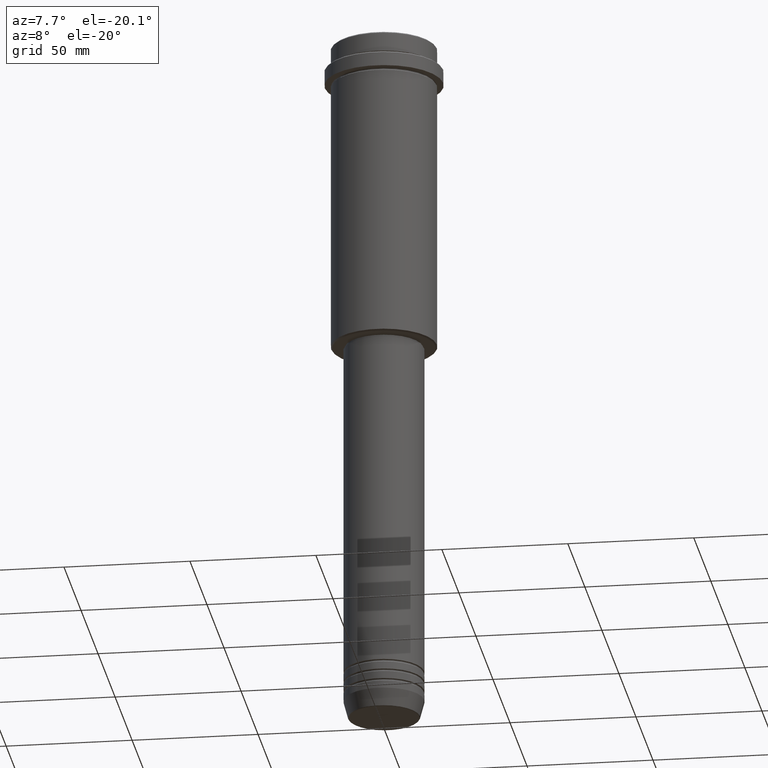
[diagram: clean part render]
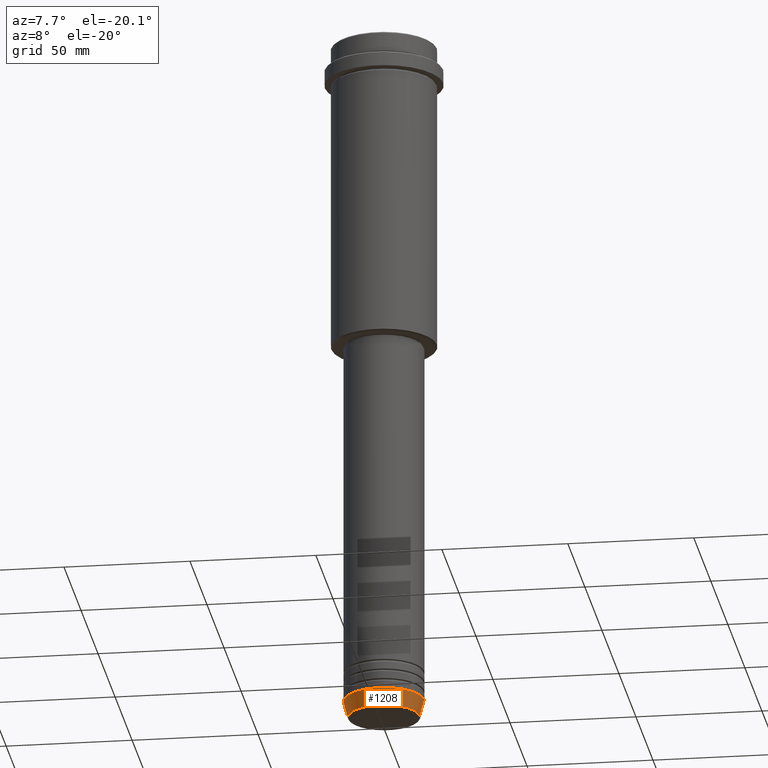
[diagram: same view with one face highlighted and labeled with its STEP entity id]
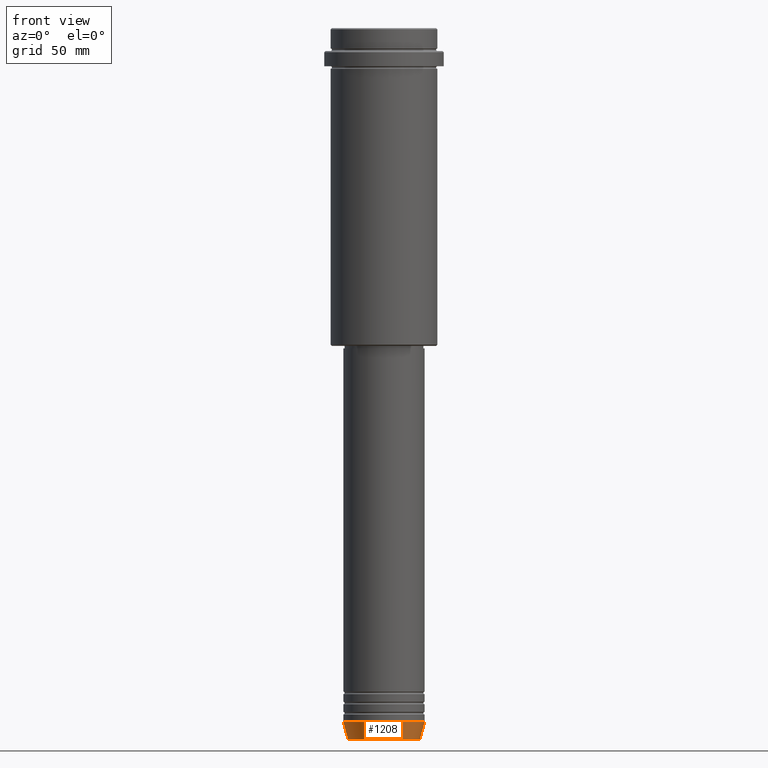
[diagram: same view with one face highlighted and labeled with its STEP entity id]
A machine part, auxiliary view. The second image highlights one B-rep face of the part: STEP entity #1208.
A second angle (front view) of the same face is appended — the face is thin or edge-on in the first view.
In plain terms, the highlighted conical surface has half-angle 15 deg.
Its self-contained STEP definition (entity closure, byte-faithful):
#49 = DIRECTION ( 'NONE',  ( 1.000000000000000000, 0.000000000000000000, 0.000000000000000000 ) ) ;
#56 = ORIENTED_EDGE ( 'NONE', *, *, #798, .T. ) ;
#96 = ORIENTED_EDGE ( 'NONE', *, *, #959, .F. ) ;
#114 = VERTEX_POINT ( 'NONE', #962 ) ;
#121 = VERTEX_POINT ( 'NONE', #1187 ) ;
#147 = LINE ( 'NONE', #1367, #1381 ) ;
#201 = CIRCLE ( 'NONE', #1401, 16.00000000000000000 ) ;
#248 = AXIS2_PLACEMENT_3D ( 'NONE', #274, #1389, #614 ) ;
#274 = CARTESIAN_POINT ( 'NONE',  ( 0.000000000000000000, 0.000000000000000000, -273.0000000000000000 ) ) ;
#328 = LINE ( 'NONE', #445, #624 ) ;
#345 = AXIS2_PLACEMENT_3D ( 'NONE', #684, #1042, #49 ) ;
#445 = CARTESIAN_POINT ( 'NONE',  ( 16.00000000000000000, 0.000000000000000000, -273.0000000000000000 ) ) ;
#447 = EDGE_LOOP ( 'NONE', ( #96, #513, #56, #652 ) ) ;
#513 = ORIENTED_EDGE ( 'NONE', *, *, #541, .T. ) ;
#541 = EDGE_CURVE ( 'NONE', #114, #121, #602, .T. ) ;
#542 = DIRECTION ( 'NONE',  ( 1.000000000000000000, 0.000000000000000000, 0.000000000000000000 ) ) ;
#602 = CIRCLE ( 'NONE', #345, 14.22365507213718772 ) ;
#614 = DIRECTION ( 'NONE',  ( 1.000000000000000000, 0.000000000000000000, 0.000000000000000000 ) ) ;
#624 = VECTOR ( 'NONE', #1410, 1000.000000000000000 ) ;
#652 = ORIENTED_EDGE ( 'NONE', *, *, #999, .F. ) ;
#684 = CARTESIAN_POINT ( 'NONE',  ( 0.000000000000000000, 0.000000000000000000, -279.6294095225512706 ) ) ;
#798 = EDGE_CURVE ( 'NONE', #121, #1022, #328, .T. ) ;
#959 = EDGE_CURVE ( 'NONE', #114, #1189, #147, .T. ) ;
#962 = CARTESIAN_POINT ( 'NONE',  ( -14.22365507213718772, 1.850665122131323337E-15, -279.6294095225512706 ) ) ;
#999 = EDGE_CURVE ( 'NONE', #1189, #1022, #201, .T. ) ;
#1009 = DIRECTION ( 'NONE',  ( -0.000000000000000000, -0.000000000000000000, 1.000000000000000000 ) ) ;
#1022 = VERTEX_POINT ( 'NONE', #1103 ) ;
#1042 = DIRECTION ( 'NONE',  ( -0.000000000000000000, -0.000000000000000000, 1.000000000000000000 ) ) ;
#1103 = CARTESIAN_POINT ( 'NONE',  ( 16.00000000000000000, 0.000000000000000000, -273.0000000000000000 ) ) ;
#1149 = DIRECTION ( 'NONE',  ( -0.2588190451025213501, 3.169619151431772337E-17, 0.9659258262890680902 ) ) ;
#1180 = FACE_OUTER_BOUND ( 'NONE', #447, .T. ) ;
#1187 = CARTESIAN_POINT ( 'NONE',  ( 14.22365507213718772, 0.000000000000000000, -279.6294095225512706 ) ) ;
#1189 = VERTEX_POINT ( 'NONE', #1264 ) ;
#1208 = ADVANCED_FACE ( 'NONE', ( #1180 ), #1271, .T. ) ;
#1211 = CARTESIAN_POINT ( 'NONE',  ( 0.000000000000000000, 0.000000000000000000, -273.0000000000000000 ) ) ;
#1264 = CARTESIAN_POINT ( 'NONE',  ( -16.00000000000000000, 1.959434878635765131E-15, -273.0000000000000000 ) ) ;
#1271 = CONICAL_SURFACE ( 'NONE', #248, 16.00000000000000000, 0.2617993877991500740 ) ;
#1367 = CARTESIAN_POINT ( 'NONE',  ( -16.00000000000000000, 1.959434878635765131E-15, -273.0000000000000000 ) ) ;
#1381 = VECTOR ( 'NONE', #1149, 1000.000000000000000 ) ;
#1389 = DIRECTION ( 'NONE',  ( -0.000000000000000000, -0.000000000000000000, 1.000000000000000000 ) ) ;
#1401 = AXIS2_PLACEMENT_3D ( 'NONE', #1211, #1009, #542 ) ;
#1410 = DIRECTION ( 'NONE',  ( 0.2588190451025213501, 0.000000000000000000, 0.9659258262890680902 ) ) ;